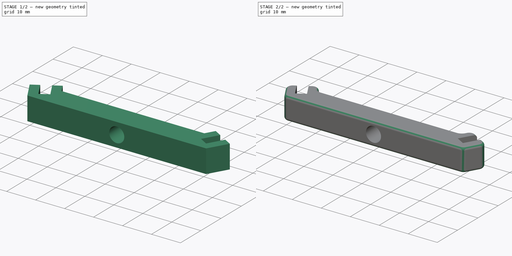
[diagram: build sequence overview — one tinted view per stage of 2, left to right]
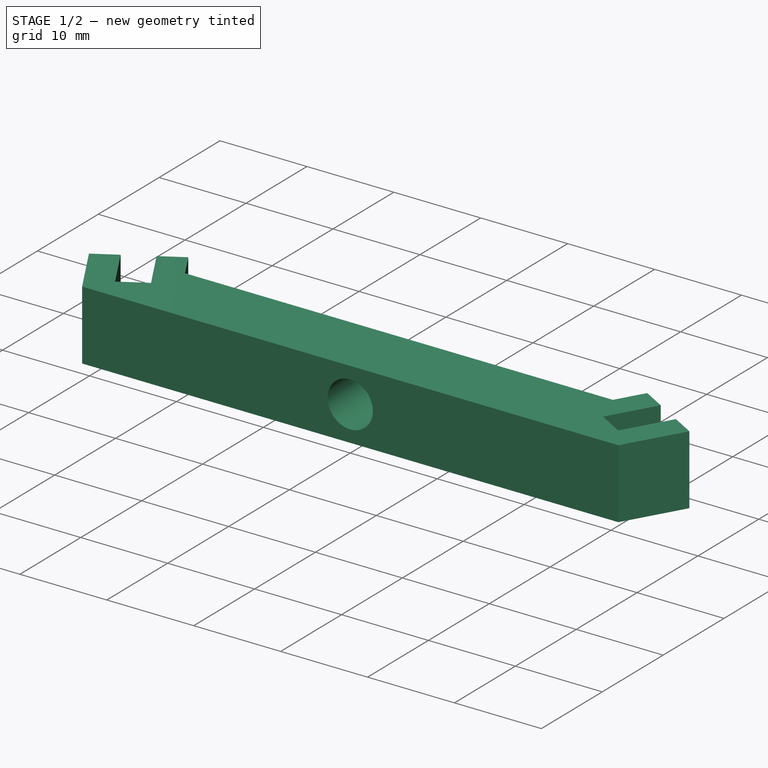
[diagram: stage 1 of 2 — iso view after this stage's code; geometry added in this stage tinted green]
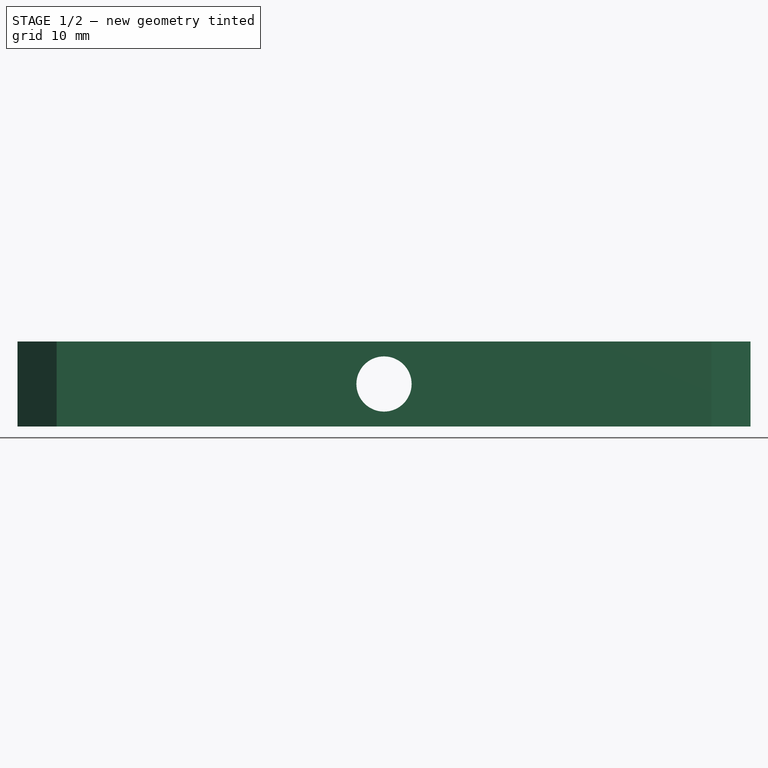
[diagram: stage 1 of 2 — front view after this stage's code; geometry added in this stage tinted green]
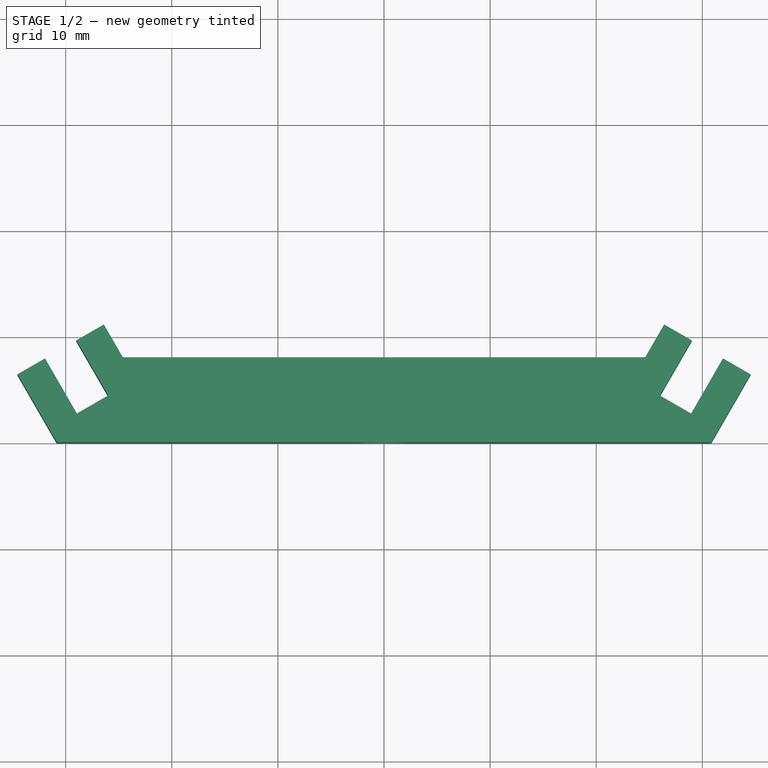
[diagram: stage 1 of 2 — top view after this stage's code; geometry added in this stage tinted green]
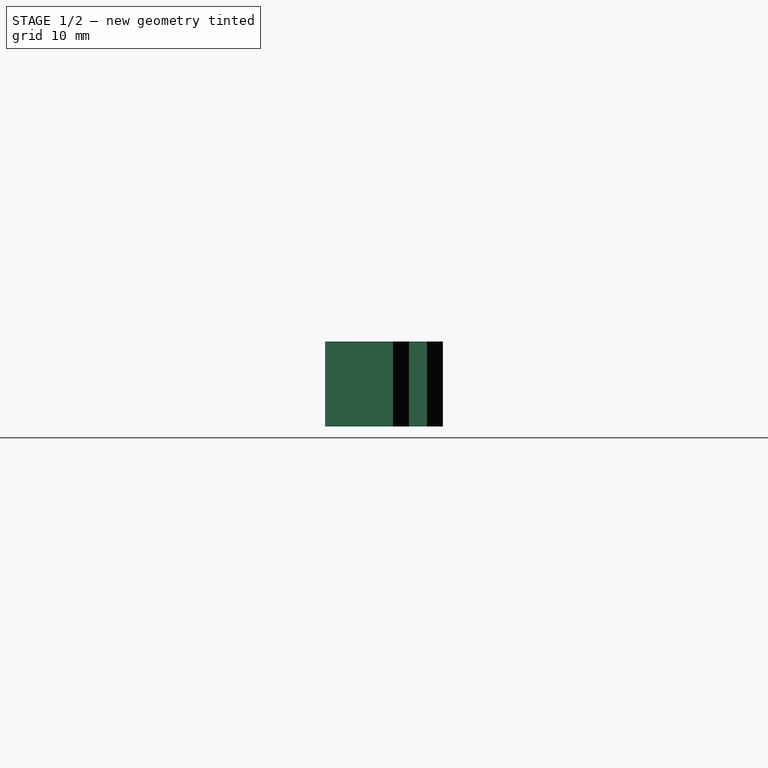
[diagram: stage 1 of 2 — right view after this stage's code; geometry added in this stage tinted green]
FCSTD DOCUMENT  (FreeCAD 0.16R6706 (Git))
Label: frame_support
License: CreativeCommons Attribution-ShareAlike
LicenseURL: http://creativecommons.org/licenses/by-sa/4.0/
objects: Sketcher::SketchObject×2, PartDesign::Fillet×2, PartDesign::Pad×1, PartDesign::Pocket×1
note: 8 computed .brp shape members not serialized (recipe doc carries the construction recipe); baked Part::Feature solids carry a one-line shape summary decoded from their .brp

FEATURE [Sketcher::SketchObject] Sketch
  sketch-geometry (18):
    g0: LineSegment StartX=-24.6144 StartY=8 StartZ=0 EndX=24.6144 EndY=8 EndZ=0
    g1: LineSegment StartX=30.8497 StartY=0 StartZ=0 EndX=-30.8497 EndY=0 EndZ=0
    g2: LineSegment StartX=30.8497 StartY=0 StartZ=0 EndX=34.5426 EndY=6.39615 EndZ=0
    g3: LineSegment StartX=-30.8497 StartY=0 StartZ=0 EndX=-34.5426 EndY=6.39615 EndZ=0
    g4: LineSegment StartX=-34.5426 StartY=6.39615 StartZ=0 EndX=-31.9445 EndY=7.89615 EndZ=0
    g5: LineSegment StartX=-31.9445 StartY=7.89615 StartZ=0 EndX=-28.9445 EndY=2.7 EndZ=0
    g6: LineSegment StartX=-28.9445 StartY=2.7 StartZ=0 EndX=-26 EndY=4.4 EndZ=0
    g7: LineSegment StartX=-26 StartY=4.4 StartZ=0 EndX=-29 EndY=9.59615 EndZ=0
    g8: LineSegment StartX=-29 StartY=9.59615 StartZ=0 EndX=-26.4019 EndY=11.0962 EndZ=0
    g9: LineSegment StartX=-26.4019 StartY=11.0962 StartZ=0 EndX=-24.6144 EndY=8 EndZ=0
    g10: LineSegment StartX=34.5426 StartY=6.39615 StartZ=0 EndX=31.9445 EndY=7.89615 EndZ=0
    g11: LineSegment StartX=31.9445 StartY=7.89615 StartZ=0 EndX=28.9445 EndY=2.7 EndZ=0
    g12: LineSegment StartX=28.9445 StartY=2.7 StartZ=0 EndX=26 EndY=4.4 EndZ=0
    g13: LineSegment StartX=26 StartY=4.4 StartZ=0 EndX=29 EndY=9.59615 EndZ=0
    g14: LineSegment StartX=29 StartY=9.59615 StartZ=0 EndX=26.4019 EndY=11.0962 EndZ=0
    g15: LineSegment StartX=26.4019 StartY=11.0962 StartZ=0 EndX=24.6144 EndY=8 EndZ=0
    g16: LineSegment [constr] StartX=26 StartY=4.4 StartZ=0 EndX=-26 EndY=4.4 EndZ=0
    g17: LineSegment [constr] StartX=28.9445 StartY=2.7 StartZ=0 EndX=-28.9445 EndY=2.7 EndZ=0
  constraints (50):
    c: Symmetric(g0,g0,g-2)
    c: Symmetric(g1,g1,g-2)
    c: DistanceY(g1,g0) = 8
    c: PointOnObject(g-1,g1)
    c: Coincident(g2,g1)
    c: Coincident(g3,g1)
    c: Angle(g2,g1) = 2.0944
    c: Symmetric(g2,g3,g-2)
    c: Coincident(g3,g4)
    c: Coincident(g4,g5)
    c: Coincident(g5,g6)
    c: Coincident(g6,g7)
    c: Coincident(g7,g8)
    c: Coincident(g8,g9)
    c: Coincident(g9,g0)
    c: Perpendicular(g3,g4)
    c: Perpendicular(g6,g5)
    c: Perpendicular(g8,g7)
    c: PointOnObject(g4,g8)
    c: Parallel(g7,g5)
    c: Parallel(g5,g9)
    c: Parallel(g9,g3)
    c: Equal(g4,g8)
    c: Distance(g4) = 3
    c: Coincident(g2,g10)
    c: Coincident(g10,g11)
    c: Coincident(g11,g12)
    c: Coincident(g12,g13)
    c: Coincident(g13,g14)
    c: Coincident(g14,g15)
    c: Coincident(g15,g0)
    c: Parallel(g2,g11)
    c: Parallel(g11,g13)
    c: Parallel(g13,g15)
    c: Perpendicular(g13,g14)
    c: Perpendicular(g10,g11)
    c: Perpendicular(g11,g12)
    c: Equal(g10,g4)
    c: PointOnObject(g13,g10)
    c: Coincident(g16,g12)
    c: Coincident(g16,g6)
    c: Horizontal(g16)
    c: DistanceX(g16,g16) = 52
    c: Coincident(g17,g11)
    c: Coincident(g17,g5)
    c: Equal(g14,g10)
    c: DistanceY(g6,g0) = 3.6
    c: Distance(g7) = 6
    c: Equal(g6,g12)
    c: Distance(g12) = 3.4
FEATURE [PartDesign::Pad] Pad
  Length = 8
  Length2 = 100
  Sketch = -> Sketch
  Type = 0
FEATURE [Sketcher::SketchObject] Sketch001
  Placement = pos=(0,0,0) rot=(1,0,0;1.5708rad)
  Support = -> Pad [Face1]
  sketch-geometry (1):
    g0: Circle CenterX=0 CenterY=4 CenterZ=0 NormalX=0 NormalY=0 NormalZ=1 Radius=2.6
  constraints (3):
    c: PointOnObject(g0,g-2)
    c: DistanceY(g-1,g0) = 4
    c: Radius(g0) = 2.6
FEATURE [PartDesign::Pocket] Pocket
  Length = 5
  Sketch = -> Sketch001
  Type = 1
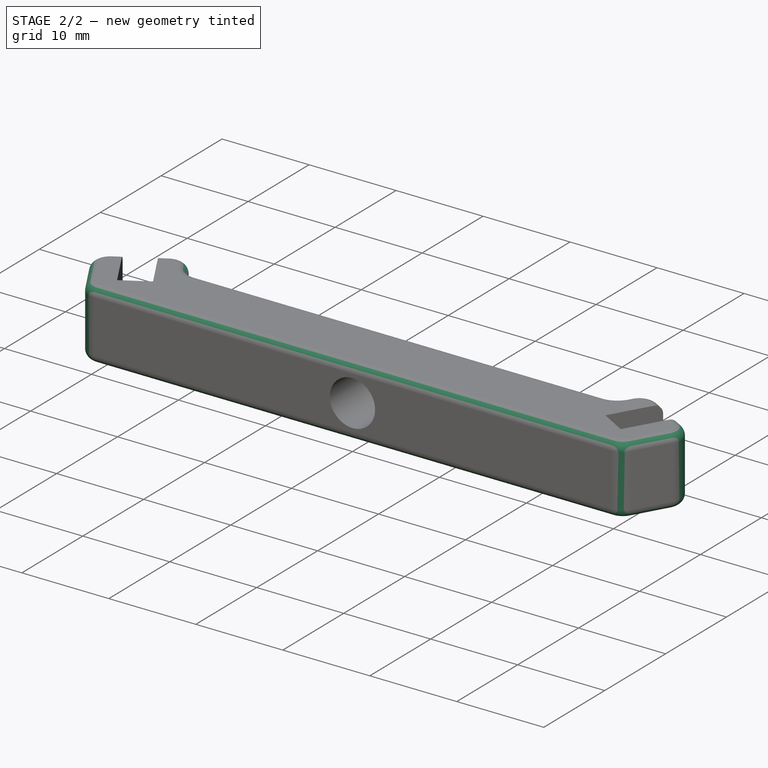
[diagram: stage 2 of 2 — iso view after this stage's code; geometry added in this stage tinted green]
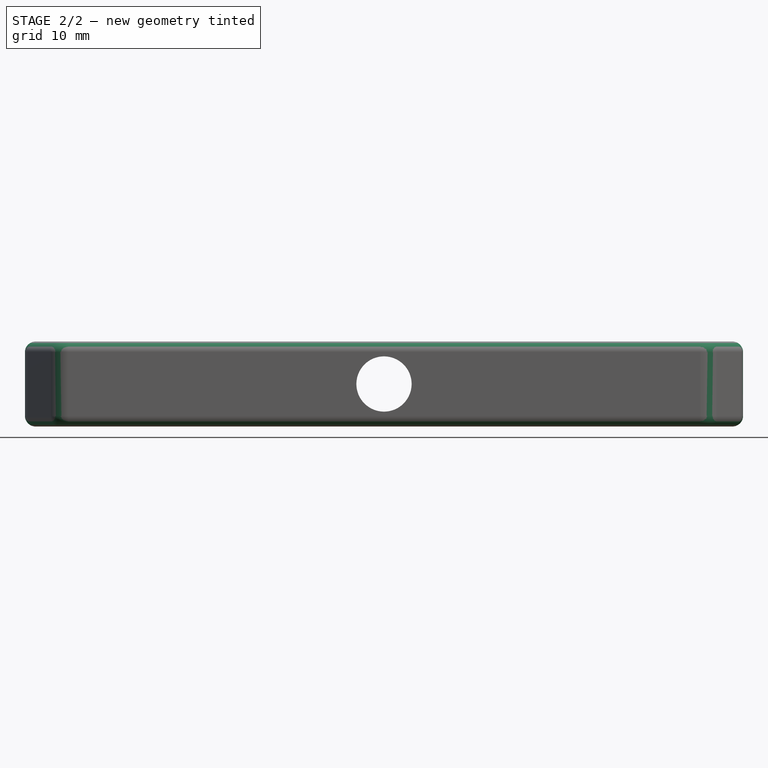
[diagram: stage 2 of 2 — front view after this stage's code; geometry added in this stage tinted green]
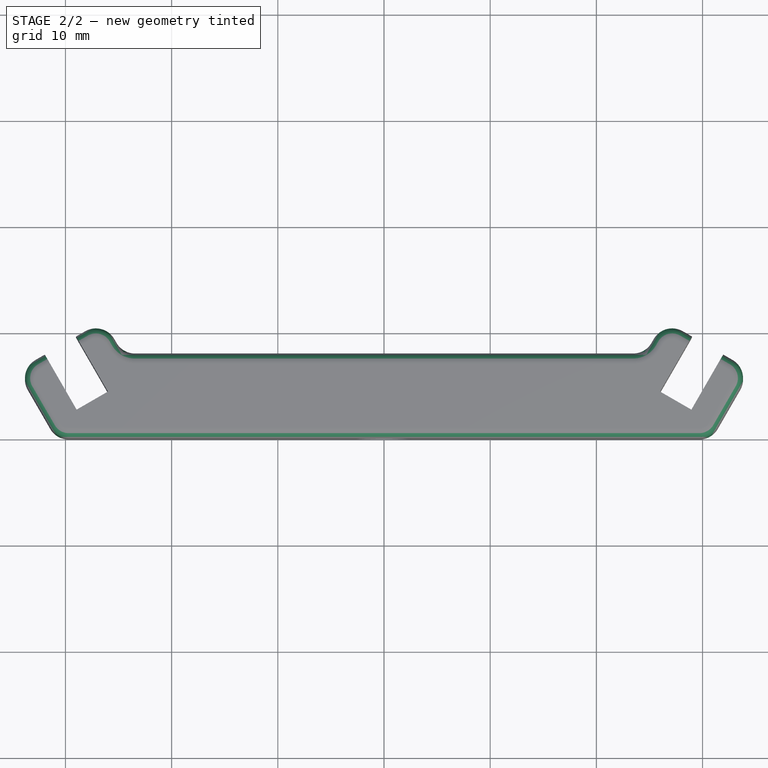
[diagram: stage 2 of 2 — top view after this stage's code; geometry added in this stage tinted green]
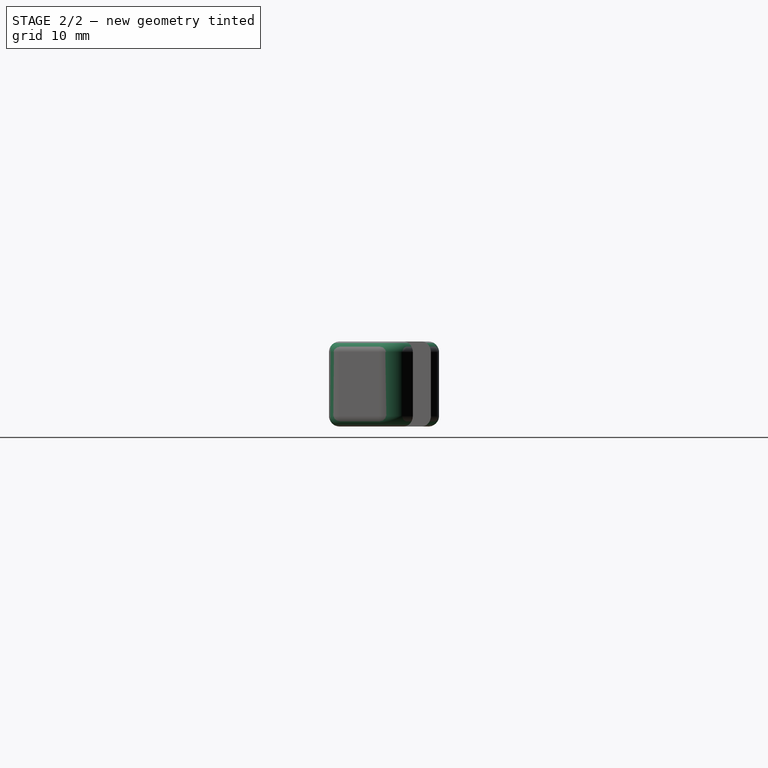
[diagram: stage 2 of 2 — right view after this stage's code; geometry added in this stage tinted green]
FEATURE [PartDesign::Fillet] Fillet
  Base = -> Pocket [Edge4,Edge46,Edge47,Edge1,Edge6,Edge48,Edge45,Edge37]
  Radius = 2
FEATURE [PartDesign::Fillet] Fillet001
  Base = -> Fillet [Edge28,Edge1,Edge53,Edge4]
  Radius = 1
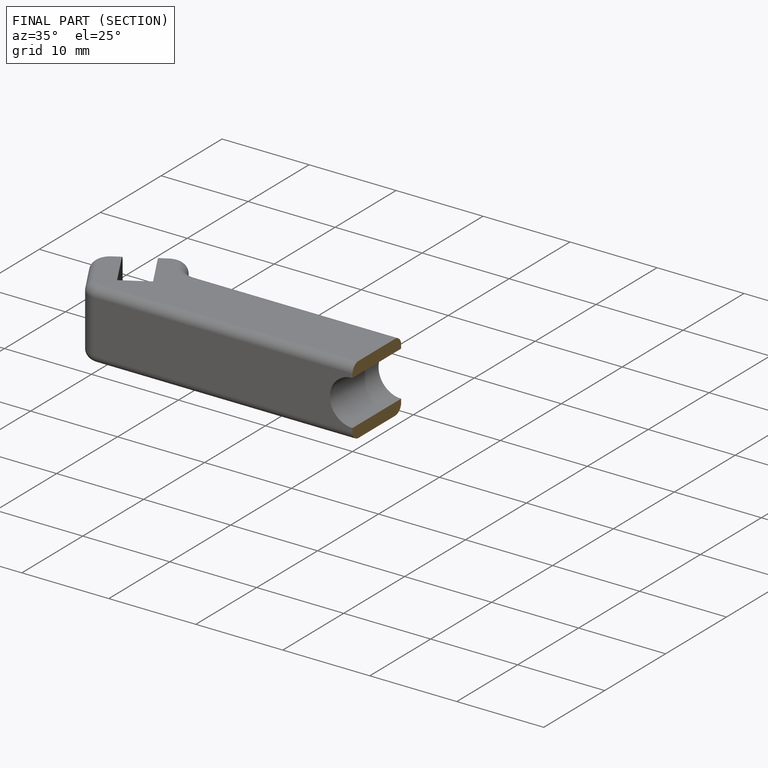
[diagram: finished part — half-section view (interior)]
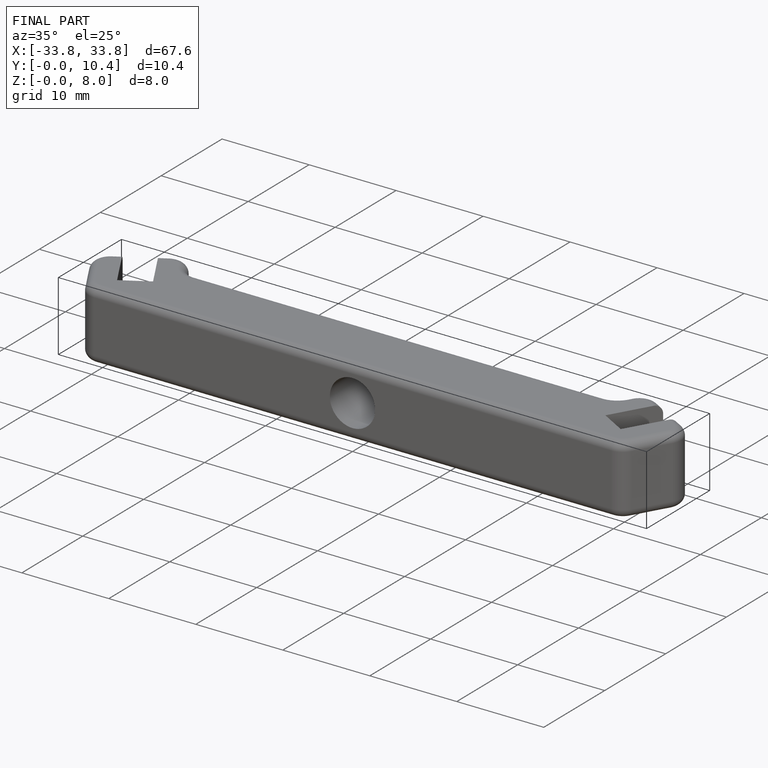
[diagram: finished part — iso view with bounding-box wireframe]
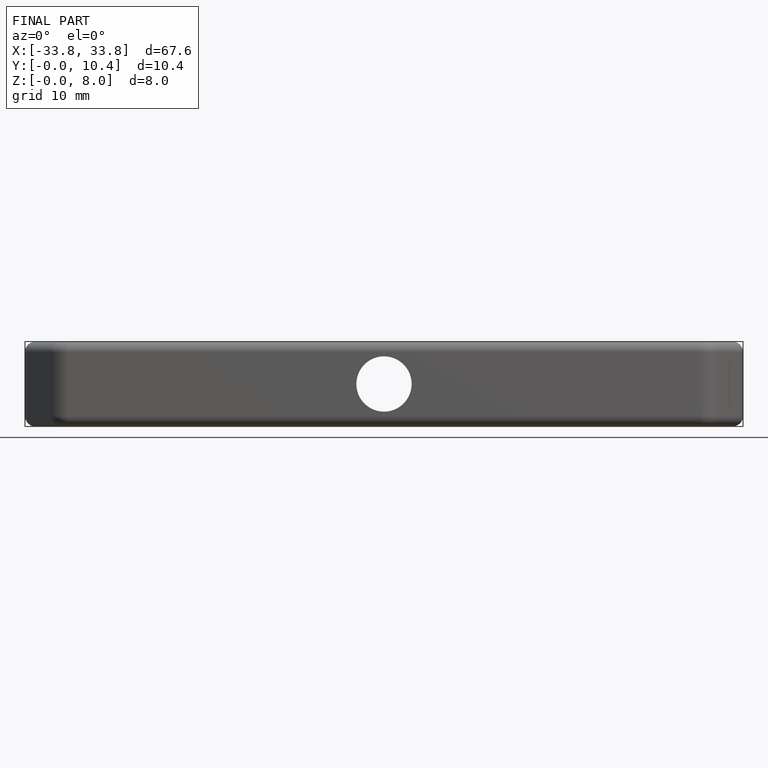
[diagram: finished part — front view with bounding-box wireframe]
